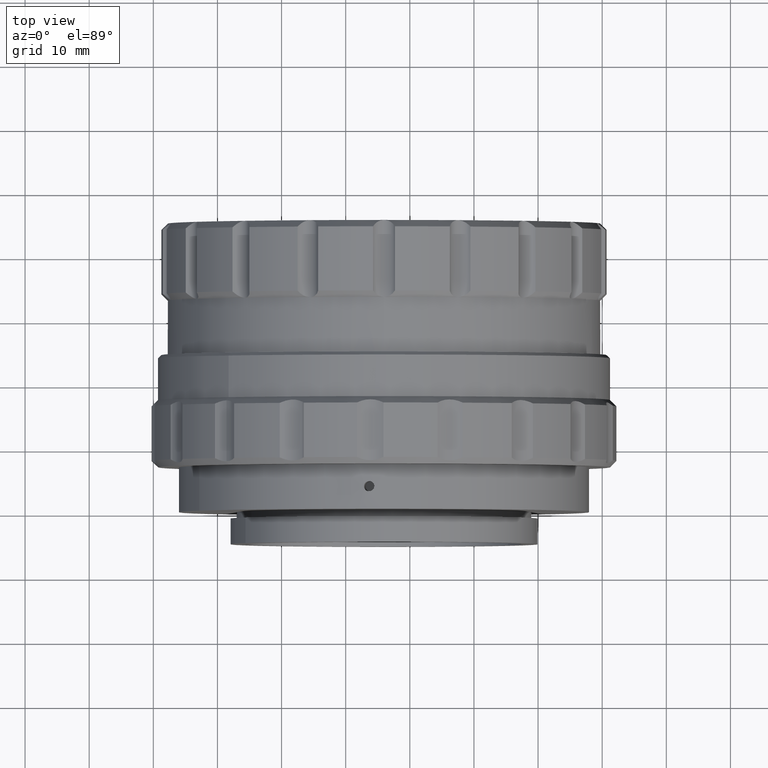
[diagram: clean part render]
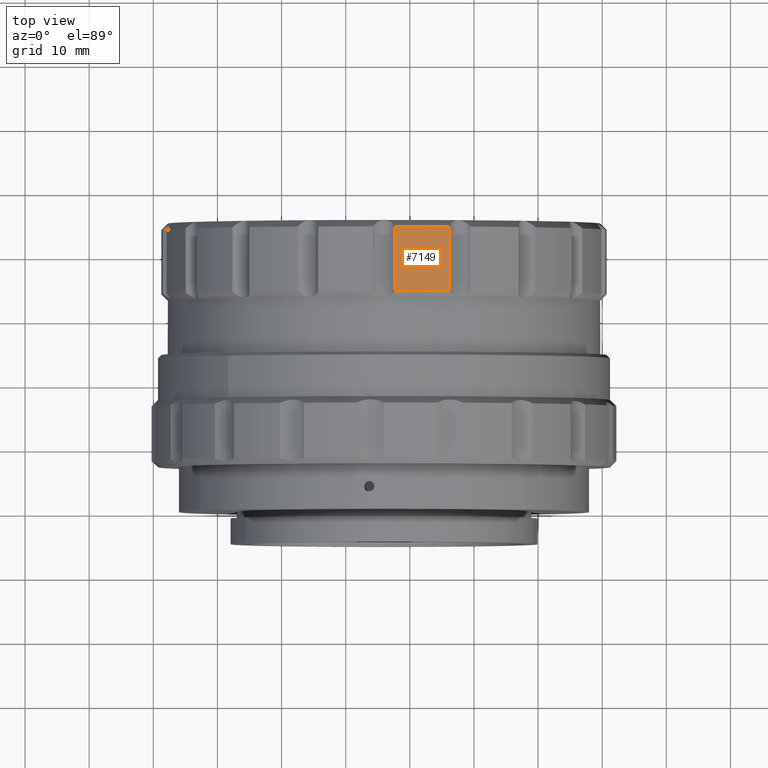
[diagram: same view with one face highlighted and labeled with its STEP entity id]
A machine part, top view. The second image highlights one B-rep face of the part: STEP entity #7149.
In plain terms, the highlighted cylindrical surface (partial cylindrical patch) has radius 34.75 mm, axis along (-0, -1, -0).
Its self-contained STEP definition (entity closure, byte-faithful):
#34 = CARTESIAN_POINT ( 'NONE',  ( 16.23836461322202851, 7.451244312994560026, 78.10207326801341310 ) ) ;
#239 = CARTESIAN_POINT ( 'NONE',  ( 7.678839977256091132, 7.451244312994560026, 79.61134840337304297 ) ) ;
#589 = VERTEX_POINT ( 'NONE', #7129 ) ;
#641 = VERTEX_POINT ( 'NONE', #5627 ) ;
#979 = VERTEX_POINT ( 'NONE', #1391 ) ;
#1326 = DIRECTION ( 'NONE',  ( -0.000000000000000000, -1.000000000000000000, -0.000000000000000000 ) ) ;
#1391 = CARTESIAN_POINT ( 'NONE',  ( 7.678839977256091132, 3.951244312994556918, 79.61134840337304297 ) ) ;
#1496 = CARTESIAN_POINT ( 'NONE',  ( 5.971701014312827738, -9.548755687005433757, 44.90330644533106863 ) ) ;
#1500 = VECTOR ( 'NONE', #6382, 1000.000000000000000 ) ;
#2924 = CIRCLE ( 'NONE', #4812, 34.75000000000000000 ) ;
#3258 = DIRECTION ( 'NONE',  ( 0.000000000000000000, 0.000000000000000000, -1.000000000000000000 ) ) ;
#3583 = DIRECTION ( 'NONE',  ( 0.000000000000000000, 0.000000000000000000, -1.000000000000000000 ) ) ;
#3746 = DIRECTION ( 'NONE',  ( -0.000000000000000000, -1.000000000000000000, -0.000000000000000000 ) ) ;
#4120 = EDGE_CURVE ( 'NONE', #641, #5904, #6492, .T. ) ;
#4287 = EDGE_CURVE ( 'NONE', #589, #979, #8274, .T. ) ;
#4541 = CARTESIAN_POINT ( 'NONE',  ( 5.971701014312827738, 13.95124431299455914, 44.90330644533106863 ) ) ;
#4812 = AXIS2_PLACEMENT_3D ( 'NONE', #4541, #3746, #7005 ) ;
#4954 = EDGE_CURVE ( 'NONE', #641, #979, #8802, .T. ) ;
#5543 = CYLINDRICAL_SURFACE ( 'NONE', #7150, 34.75000000000000000 ) ;
#5627 = CARTESIAN_POINT ( 'NONE',  ( 16.23836461322202851, 3.951244312994556918, 78.10207326801341310 ) ) ;
#5713 = FACE_OUTER_BOUND ( 'NONE', #10298, .T. ) ;
#5781 = CARTESIAN_POINT ( 'NONE',  ( 16.23836461322202851, 13.95124431299455914, 78.10207326801339889 ) ) ;
#5904 = VERTEX_POINT ( 'NONE', #5781 ) ;
#5974 = ORIENTED_EDGE ( 'NONE', *, *, #10494, .T. ) ;
#6382 = DIRECTION ( 'NONE',  ( -0.000000000000000000, 1.000000000000000000, -0.000000000000000000 ) ) ;
#6482 = ORIENTED_EDGE ( 'NONE', *, *, #4120, .T. ) ;
#6492 = LINE ( 'NONE', #34, #1500 ) ;
#6917 = AXIS2_PLACEMENT_3D ( 'NONE', #8499, #1326, #3583 ) ;
#7005 = DIRECTION ( 'NONE',  ( 0.000000000000000000, 0.000000000000000000, -1.000000000000000000 ) ) ;
#7095 = VECTOR ( 'NONE', #10075, 1000.000000000000000 ) ;
#7129 = CARTESIAN_POINT ( 'NONE',  ( 7.678839977256080473, 13.95124431299455914, 79.61134840337302876 ) ) ;
#7149 = ADVANCED_FACE ( 'NONE', ( #5713 ), #5543, .T. ) ;
#7150 = AXIS2_PLACEMENT_3D ( 'NONE', #1496, #8076, #3258 ) ;
#8076 = DIRECTION ( 'NONE',  ( -0.000000000000000000, -1.000000000000000000, -0.000000000000000000 ) ) ;
#8274 = LINE ( 'NONE', #239, #7095 ) ;
#8499 = CARTESIAN_POINT ( 'NONE',  ( 5.971701014312827738, 3.951244312994556918, 44.90330644533106863 ) ) ;
#8760 = ORIENTED_EDGE ( 'NONE', *, *, #4954, .F. ) ;
#8802 = CIRCLE ( 'NONE', #6917, 34.75000000000000000 ) ;
#10075 = DIRECTION ( 'NONE',  ( 0.000000000000000000, -1.000000000000000000, 0.000000000000000000 ) ) ;
#10298 = EDGE_LOOP ( 'NONE', ( #5974, #10500, #8760, #6482 ) ) ;
#10494 = EDGE_CURVE ( 'NONE', #5904, #589, #2924, .T. ) ;
#10500 = ORIENTED_EDGE ( 'NONE', *, *, #4287, .T. ) ;